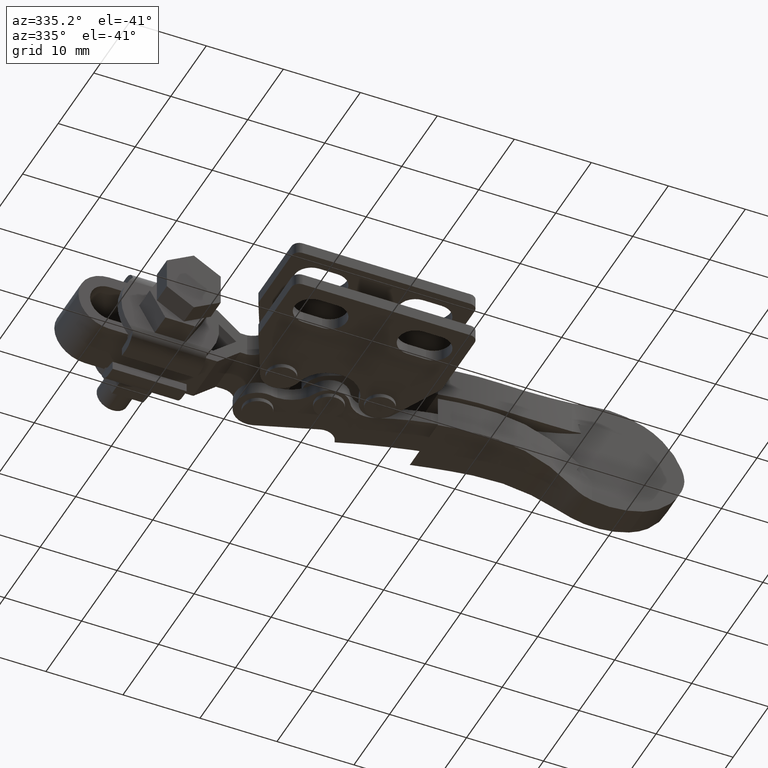
[diagram: clean part render]
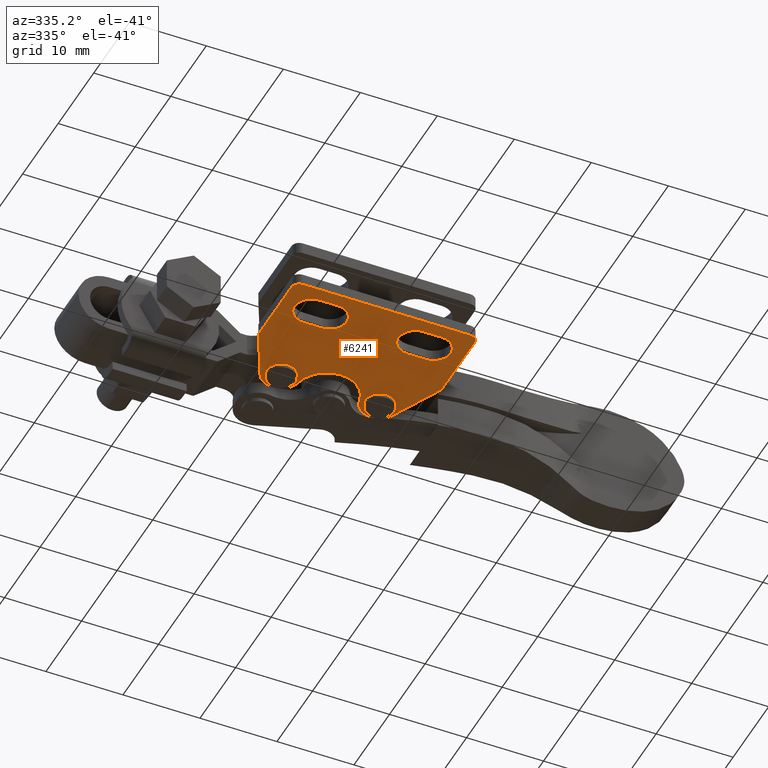
[diagram: same view with one face highlighted and labeled with its STEP entity id]
A machine part, auxiliary view. The second image highlights one B-rep face of the part: STEP entity #6241.
In plain terms, the highlighted planar face has unit normal (0, 0, 1).
Its self-contained STEP definition (entity closure, byte-faithful):
#27 = VERTEX_POINT ( 'NONE', #8476 ) ;
#49 = EDGE_CURVE ( 'NONE', #689, #8184, #8770, .T. ) ;
#179 = EDGE_CURVE ( 'NONE', #4251, #689, #1405, .T. ) ;
#365 = AXIS2_PLACEMENT_3D ( 'NONE', #9081, #4459, #9846 ) ;
#449 = ORIENTED_EDGE ( 'NONE', *, *, #49, .F. ) ;
#461 = FACE_OUTER_BOUND ( 'NONE', #1015, .T. ) ;
#549 = DIRECTION ( 'NONE',  ( 1.000000000000000000, 0.0000000000000000000, -0.0000000000000000000 ) ) ;
#578 = CIRCLE ( 'NONE', #7177, 1.875000000000000000 ) ;
#595 = DIRECTION ( 'NONE',  ( -0.0000000000000000000, -0.0000000000000000000, -1.000000000000000000 ) ) ;
#689 = VERTEX_POINT ( 'NONE', #4300 ) ;
#719 = DIRECTION ( 'NONE',  ( -0.0000000000000000000, -0.0000000000000000000, -1.000000000000000000 ) ) ;
#797 = LINE ( 'NONE', #916, #6941 ) ;
#823 = CARTESIAN_POINT ( 'NONE',  ( 2.999999999999891600, 1.749999999999999800, -3.199999999999851900 ) ) ;
#825 = DIRECTION ( 'NONE',  ( -1.000000000000000000, -0.0000000000000000000, 0.0000000000000000000 ) ) ;
#910 = EDGE_LOOP ( 'NONE', ( #6817, #4350 ) ) ;
#916 = CARTESIAN_POINT ( 'NONE',  ( 2.999999999999891600, 1.749999999999999800, -3.199999999999851900 ) ) ;
#932 = FACE_BOUND ( 'NONE', #6158, .T. ) ;
#935 = CARTESIAN_POINT ( 'NONE',  ( 20.53794887785156600, 16.86275654908127600, -3.199999999999851900 ) ) ;
#954 = AXIS2_PLACEMENT_3D ( 'NONE', #5866, #1254, #6610 ) ;
#967 = VECTOR ( 'NONE', #5178, 1000.000000000000000 ) ;
#1015 = EDGE_LOOP ( 'NONE', ( #6300, #1287, #9920, #3271, #4985, #449, #8466, #1125, #4337, #3084 ) ) ;
#1076 = AXIS2_PLACEMENT_3D ( 'NONE', #6642, #5157, #549 ) ;
#1125 = ORIENTED_EDGE ( 'NONE', *, *, #9242, .F. ) ;
#1129 = CARTESIAN_POINT ( 'NONE',  ( 3.262051122148043700, 16.86275654908130100, -3.199999999999851900 ) ) ;
#1254 = DIRECTION ( 'NONE',  ( 0.0000000000000000000, 0.0000000000000000000, 1.000000000000000000 ) ) ;
#1283 = VERTEX_POINT ( 'NONE', #1471 ) ;
#1287 = ORIENTED_EDGE ( 'NONE', *, *, #7120, .T. ) ;
#1329 = CARTESIAN_POINT ( 'NONE',  ( 1.000000000000000000, 0.0000000000000000000, -3.199999999999851900 ) ) ;
#1356 = ORIENTED_EDGE ( 'NONE', *, *, #8849, .T. ) ;
#1405 = CIRCLE ( 'NONE', #8087, 2.499999999999998700 ) ;
#1430 = VECTOR ( 'NONE', #8886, 1000.000000000000000 ) ;
#1441 = DIRECTION ( 'NONE',  ( -0.0000000000000000000, -1.000000000000000000, -0.0000000000000000000 ) ) ;
#1471 = CARTESIAN_POINT ( 'NONE',  ( 22.05000000000000100, 3.950000000000000200, -3.199999999999851900 ) ) ;
#1594 = VERTEX_POINT ( 'NONE', #1129 ) ;
#1599 = ORIENTED_EDGE ( 'NONE', *, *, #7982, .F. ) ;
#1697 = CARTESIAN_POINT ( 'NONE',  ( 17.44999999999999900, 3.950000000000000200, -3.199999999999851900 ) ) ;
#1763 = ORIENTED_EDGE ( 'NONE', *, *, #8268, .T. ) ;
#1820 = VERTEX_POINT ( 'NONE', #6343 ) ;
#1905 = VERTEX_POINT ( 'NONE', #7987 ) ;
#1964 = EDGE_CURVE ( 'NONE', #8184, #1594, #9660, .T. ) ;
#1967 = VECTOR ( 'NONE', #1441, 1000.000000000000000 ) ;
#1980 = ORIENTED_EDGE ( 'NONE', *, *, #7875, .T. ) ;
#2008 = ORIENTED_EDGE ( 'NONE', *, *, #4755, .T. ) ;
#2039 = AXIS2_PLACEMENT_3D ( 'NONE', #7202, #2614, #7980 ) ;
#2078 = ORIENTED_EDGE ( 'NONE', *, *, #7042, .T. ) ;
#2197 = EDGE_CURVE ( 'NONE', #4496, #2663, #6402, .T. ) ;
#2242 = CARTESIAN_POINT ( 'NONE',  ( 0.0000000000000000000, 3.000000000000113700, -3.199999999999851900 ) ) ;
#2376 = CIRCLE ( 'NONE', #3953, 2.200000000000000600 ) ;
#2405 = DIRECTION ( 'NONE',  ( 1.000000000000000000, 0.0000000000000000000, -0.0000000000000000000 ) ) ;
#2442 = VERTEX_POINT ( 'NONE', #4080 ) ;
#2469 = DIRECTION ( 'NONE',  ( 1.000000000000000000, 0.0000000000000000000, 0.0000000000000000000 ) ) ;
#2487 = FACE_BOUND ( 'NONE', #7347, .T. ) ;
#2505 = DIRECTION ( 'NONE',  ( 1.000000000000000000, 0.0000000000000000000, 0.0000000000000000000 ) ) ;
#2516 = CARTESIAN_POINT ( 'NONE',  ( 19.84999999999999800, 3.950000000000000200, -3.199999999999851900 ) ) ;
#2614 = DIRECTION ( 'NONE',  ( -0.0000000000000000000, -0.0000000000000000000, -1.000000000000000000 ) ) ;
#2663 = VERTEX_POINT ( 'NONE', #9794 ) ;
#3019 = CARTESIAN_POINT ( 'NONE',  ( 3.950000000000000200, 3.950000000000000200, -3.199999999999851900 ) ) ;
#3084 = ORIENTED_EDGE ( 'NONE', *, *, #8618, .T. ) ;
#3135 = LINE ( 'NONE', #8789, #5189 ) ;
#3190 = ORIENTED_EDGE ( 'NONE', *, *, #2197, .T. ) ;
#3233 = LINE ( 'NONE', #3504, #1430 ) ;
#3271 = ORIENTED_EDGE ( 'NONE', *, *, #9747, .F. ) ;
#3298 = EDGE_CURVE ( 'NONE', #3304, #7501, #3233, .T. ) ;
#3303 = DIRECTION ( 'NONE',  ( 1.000000000000000000, 0.0000000000000000000, 0.0000000000000000000 ) ) ;
#3304 = VERTEX_POINT ( 'NONE', #7334 ) ;
#3473 = LINE ( 'NONE', #7886, #6827 ) ;
#3488 = CARTESIAN_POINT ( 'NONE',  ( 5.500750043949922000, 15.75000000000009800, -3.199999999999851900 ) ) ;
#3504 = CARTESIAN_POINT ( 'NONE',  ( 2.999999999999891600, 6.150000000000001200, -3.199999999999851900 ) ) ;
#3539 = VERTEX_POINT ( 'NONE', #6134 ) ;
#3558 = CARTESIAN_POINT ( 'NONE',  ( 19.84999999999999800, 3.950000000000000200, -3.199999999999851900 ) ) ;
#3589 = EDGE_CURVE ( 'NONE', #2663, #27, #5998, .T. ) ;
#3616 = CARTESIAN_POINT ( 'NONE',  ( 11.89999999999980000, 16.89000000000005700, -3.199999999999851900 ) ) ;
#3801 = DIRECTION ( 'NONE',  ( 1.000000000000000000, 0.0000000000000000000, 0.0000000000000000000 ) ) ;
#3824 = CARTESIAN_POINT ( 'NONE',  ( 6.349999999999999600, 3.950000000000000200, -3.199999999999851900 ) ) ;
#3856 = LINE ( 'NONE', #5629, #7683 ) ;
#3895 = CARTESIAN_POINT ( 'NONE',  ( 18.29924995604967800, 15.75000000000009800, -3.199999999999848700 ) ) ;
#3948 = VECTOR ( 'NONE', #825, 1000.000000000000000 ) ;
#3953 = AXIS2_PLACEMENT_3D ( 'NONE', #3019, #8388, #3801 ) ;
#4080 = CARTESIAN_POINT ( 'NONE',  ( 0.0000000000000000000, 10.30000000000031000, -3.199999999999851900 ) ) ;
#4251 = VERTEX_POINT ( 'NONE', #935 ) ;
#4258 = DIRECTION ( 'NONE',  ( 1.000000000000000000, 0.0000000000000000000, 0.0000000000000000000 ) ) ;
#4300 = CARTESIAN_POINT ( 'NONE',  ( 15.83799997295369400, 16.18846153846159900, -3.199999999999851900 ) ) ;
#4317 = DIRECTION ( 'NONE',  ( 1.000000000000000000, 0.0000000000000000000, 0.0000000000000000000 ) ) ;
#4337 = ORIENTED_EDGE ( 'NONE', *, *, #9898, .F. ) ;
#4350 = ORIENTED_EDGE ( 'NONE', *, *, #5253, .F. ) ;
#4459 = DIRECTION ( 'NONE',  ( -0.0000000000000000000, -0.0000000000000000000, -1.000000000000000000 ) ) ;
#4466 = DIRECTION ( 'NONE',  ( -0.0000000000000000000, -0.0000000000000000000, -1.000000000000000000 ) ) ;
#4472 = AXIS2_PLACEMENT_3D ( 'NONE', #5335, #719, #6103 ) ;
#4496 = VERTEX_POINT ( 'NONE', #8052 ) ;
#4532 = FACE_BOUND ( 'NONE', #7048, .T. ) ;
#4575 = DIRECTION ( 'NONE',  ( 1.000000000000000000, 0.0000000000000000000, 0.0000000000000000000 ) ) ;
#4605 = VERTEX_POINT ( 'NONE', #5922 ) ;
#4667 = DIRECTION ( 'NONE',  ( 1.000000000000000000, 0.0000000000000000000, 0.0000000000000000000 ) ) ;
#4671 = EDGE_CURVE ( 'NONE', #9893, #9693, #7059, .T. ) ;
#4744 = CIRCLE ( 'NONE', #7641, 1.874999999999998200 ) ;
#4755 = EDGE_CURVE ( 'NONE', #27, #3539, #2376, .T. ) ;
#4823 = EDGE_CURVE ( 'NONE', #7635, #1905, #7781, .T. ) ;
#4944 = EDGE_CURVE ( 'NONE', #7339, #4605, #3473, .T. ) ;
#4985 = ORIENTED_EDGE ( 'NONE', *, *, #1964, .F. ) ;
#4993 = ORIENTED_EDGE ( 'NONE', *, *, #3298, .T. ) ;
#5081 = CIRCLE ( 'NONE', #9961, 2.200000000000000600 ) ;
#5086 = VERTEX_POINT ( 'NONE', #5751 ) ;
#5108 = DIRECTION ( 'NONE',  ( -0.0000000000000000000, -0.0000000000000000000, -1.000000000000000000 ) ) ;
#5157 = DIRECTION ( 'NONE',  ( 0.0000000000000000000, 0.0000000000000000000, 1.000000000000000000 ) ) ;
#5178 = DIRECTION ( 'NONE',  ( 0.0000000000000000000, 1.000000000000000000, 0.0000000000000000000 ) ) ;
#5189 = VECTOR ( 'NONE', #9583, 1000.000000000000100 ) ;
#5204 = CARTESIAN_POINT ( 'NONE',  ( 5.500750043949922800, 15.75000000000009800, -3.199999999999848700 ) ) ;
#5253 = EDGE_CURVE ( 'NONE', #9693, #9893, #578, .T. ) ;
#5329 = CARTESIAN_POINT ( 'NONE',  ( 23.79999999999959900, 1.000000000000000000, -3.199999999999851900 ) ) ;
#5335 = CARTESIAN_POINT ( 'NONE',  ( 22.79999999999959900, 1.000000000000000000, -3.199999999999851900 ) ) ;
#5352 = VERTEX_POINT ( 'NONE', #5329 ) ;
#5437 = CARTESIAN_POINT ( 'NONE',  ( 2.999999999999891600, 6.150000000000001200, -3.199999999999851900 ) ) ;
#5576 = DIRECTION ( 'NONE',  ( 1.000000000000000000, 0.0000000000000000000, 0.0000000000000000000 ) ) ;
#5629 = CARTESIAN_POINT ( 'NONE',  ( 20.53794887785156600, 16.86275654908127600, -3.199999999999851900 ) ) ;
#5695 = CIRCLE ( 'NONE', #9524, 2.200000000000000600 ) ;
#5698 = ORIENTED_EDGE ( 'NONE', *, *, #3589, .T. ) ;
#5751 = CARTESIAN_POINT ( 'NONE',  ( 19.84999999999999800, 1.749999999999999800, -3.199999999999851900 ) ) ;
#5866 = CARTESIAN_POINT ( 'NONE',  ( 6.349999999999999600, 3.950000000000000200, -3.199999999999851900 ) ) ;
#5911 = EDGE_CURVE ( 'NONE', #3539, #9443, #797, .T. ) ;
#5922 = CARTESIAN_POINT ( 'NONE',  ( 22.79999999999959900, 0.0000000000000000000, -3.199999999999851900 ) ) ;
#5929 = CARTESIAN_POINT ( 'NONE',  ( 6.349999999999999600, 1.749999999999999800, -3.199999999999851900 ) ) ;
#5971 = CIRCLE ( 'NONE', #8399, 2.200000000000000600 ) ;
#5980 = DIRECTION ( 'NONE',  ( 1.000000000000000000, 1.850371707708594400E-015, 0.0000000000000000000 ) ) ;
#5998 = LINE ( 'NONE', #5437, #3948 ) ;
#6053 = LINE ( 'NONE', #2242, #1967 ) ;
#6103 = DIRECTION ( 'NONE',  ( 1.000000000000000000, 0.0000000000000000000, 0.0000000000000000000 ) ) ;
#6134 = CARTESIAN_POINT ( 'NONE',  ( 3.950000000000000200, 1.749999999999999800, -3.199999999999851900 ) ) ;
#6156 = VECTOR ( 'NONE', #2405, 1000.000000000000000 ) ;
#6158 = EDGE_LOOP ( 'NONE', ( #5698, #2008, #7358, #1980, #3190 ) ) ;
#6241 = ADVANCED_FACE ( 'NONE', ( #932, #2487, #6576, #4532, #461 ), #8185, .F. ) ;
#6284 = DIRECTION ( 'NONE',  ( 1.000000000000000000, 0.0000000000000000000, -0.0000000000000000000 ) ) ;
#6300 = ORIENTED_EDGE ( 'NONE', *, *, #4944, .F. ) ;
#6343 = CARTESIAN_POINT ( 'NONE',  ( 0.0000000000000000000, 1.000000000000000000, -3.199999999999851900 ) ) ;
#6356 = VERTEX_POINT ( 'NONE', #9115 ) ;
#6391 = DIRECTION ( 'NONE',  ( -0.4451026196324694400, 0.8954795687207571800, -0.0000000000000000000 ) ) ;
#6402 = CIRCLE ( 'NONE', #8416, 2.200000000000000600 ) ;
#6555 = ORIENTED_EDGE ( 'NONE', *, *, #4823, .F. ) ;
#6576 = FACE_BOUND ( 'NONE', #910, .T. ) ;
#6610 = DIRECTION ( 'NONE',  ( 1.000000000000000000, 0.0000000000000000000, 0.0000000000000000000 ) ) ;
#6642 = CARTESIAN_POINT ( 'NONE',  ( 2.999999999999891600, 3.000000000000113700, -3.199999999999851900 ) ) ;
#6817 = ORIENTED_EDGE ( 'NONE', *, *, #4671, .F. ) ;
#6827 = VECTOR ( 'NONE', #5576, 1000.000000000000000 ) ;
#6850 = LINE ( 'NONE', #8216, #967 ) ;
#6859 = CARTESIAN_POINT ( 'NONE',  ( 17.44999999999999900, 6.150000000000001200, -3.199999999999851900 ) ) ;
#6941 = VECTOR ( 'NONE', #6284, 1000.000000000000000 ) ;
#6999 = CARTESIAN_POINT ( 'NONE',  ( 20.13329456691074500, 16.13975038854574300, -3.199999999999848700 ) ) ;
#7042 = EDGE_CURVE ( 'NONE', #7501, #8104, #5971, .T. ) ;
#7048 = EDGE_LOOP ( 'NONE', ( #6555, #1599 ) ) ;
#7059 = CIRCLE ( 'NONE', #365, 1.875000000000000000 ) ;
#7080 = DIRECTION ( 'NONE',  ( 0.0000000000000000000, 0.0000000000000000000, 1.000000000000000000 ) ) ;
#7081 = AXIS2_PLACEMENT_3D ( 'NONE', #3488, #8864, #4258 ) ;
#7120 = EDGE_CURVE ( 'NONE', #7339, #1820, #7282, .T. ) ;
#7177 = AXIS2_PLACEMENT_3D ( 'NONE', #5204, #595, #5980 ) ;
#7202 = CARTESIAN_POINT ( 'NONE',  ( 1.000000000000000000, 1.000000000000000000, -3.199999999999851900 ) ) ;
#7232 = CIRCLE ( 'NONE', #4472, 1.000000000000000900 ) ;
#7282 = CIRCLE ( 'NONE', #2039, 1.000000000000000000 ) ;
#7334 = CARTESIAN_POINT ( 'NONE',  ( 19.84999999999999800, 6.150000000000001200, -3.199999999999851900 ) ) ;
#7339 = VERTEX_POINT ( 'NONE', #1329 ) ;
#7347 = EDGE_LOOP ( 'NONE', ( #4993, #2078, #7379, #1356, #1763 ) ) ;
#7358 = ORIENTED_EDGE ( 'NONE', *, *, #5911, .T. ) ;
#7379 = ORIENTED_EDGE ( 'NONE', *, *, #8187, .T. ) ;
#7501 = VERTEX_POINT ( 'NONE', #6859 ) ;
#7635 = VERTEX_POINT ( 'NONE', #6999 ) ;
#7641 = AXIS2_PLACEMENT_3D ( 'NONE', #9087, #4466, #9849 ) ;
#7683 = VECTOR ( 'NONE', #6391, 1000.000000000000100 ) ;
#7781 = CIRCLE ( 'NONE', #8064, 1.874999999999998200 ) ;
#7875 = EDGE_CURVE ( 'NONE', #9443, #4496, #8704, .T. ) ;
#7886 = CARTESIAN_POINT ( 'NONE',  ( 2.999999999999891600, 0.0000000000000000000, -3.199999999999851900 ) ) ;
#7894 = DIRECTION ( 'NONE',  ( 0.0000000000000000000, 0.0000000000000000000, 1.000000000000000000 ) ) ;
#7980 = DIRECTION ( 'NONE',  ( 1.000000000000000000, 0.0000000000000000000, 0.0000000000000000000 ) ) ;
#7982 = EDGE_CURVE ( 'NONE', #1905, #7635, #4744, .T. ) ;
#7987 = CARTESIAN_POINT ( 'NONE',  ( 16.46520534518861100, 15.36024961145445300, -3.199999999999848700 ) ) ;
#8052 = CARTESIAN_POINT ( 'NONE',  ( 8.550000000000000700, 3.950000000000000200, -3.199999999999851900 ) ) ;
#8055 = EDGE_CURVE ( 'NONE', #2442, #1820, #6053, .T. ) ;
#8064 = AXIS2_PLACEMENT_3D ( 'NONE', #3895, #9257, #4667 ) ;
#8087 = AXIS2_PLACEMENT_3D ( 'NONE', #9716, #9695, #9420 ) ;
#8104 = VERTEX_POINT ( 'NONE', #8455 ) ;
#8173 = CARTESIAN_POINT ( 'NONE',  ( 7.373472918111313700, 15.65762015050517800, -3.199999999999848700 ) ) ;
#8184 = VERTEX_POINT ( 'NONE', #9305 ) ;
#8185 = PLANE ( 'NONE',  #1076 ) ;
#8187 = EDGE_CURVE ( 'NONE', #8104, #5086, #8203, .T. ) ;
#8203 = LINE ( 'NONE', #823, #6156 ) ;
#8216 = CARTESIAN_POINT ( 'NONE',  ( 23.79999999999959900, 3.000000000000113700, -3.199999999999851900 ) ) ;
#8268 = EDGE_CURVE ( 'NONE', #1283, #3304, #5695, .T. ) ;
#8388 = DIRECTION ( 'NONE',  ( 0.0000000000000000000, 0.0000000000000000000, 1.000000000000000000 ) ) ;
#8399 = AXIS2_PLACEMENT_3D ( 'NONE', #1697, #7080, #2469 ) ;
#8416 = AXIS2_PLACEMENT_3D ( 'NONE', #3824, #9195, #4575 ) ;
#8455 = CARTESIAN_POINT ( 'NONE',  ( 17.44999999999999900, 1.749999999999999800, -3.199999999999851900 ) ) ;
#8466 = ORIENTED_EDGE ( 'NONE', *, *, #179, .F. ) ;
#8476 = CARTESIAN_POINT ( 'NONE',  ( 3.950000000000000200, 6.150000000000001200, -3.199999999999851900 ) ) ;
#8618 = EDGE_CURVE ( 'NONE', #5352, #4605, #7232, .T. ) ;
#8693 = CARTESIAN_POINT ( 'NONE',  ( 3.628027169788533300, 15.84237984949501600, -3.199999999999848700 ) ) ;
#8704 = CIRCLE ( 'NONE', #954, 2.200000000000000600 ) ;
#8770 = CIRCLE ( 'NONE', #9316, 4.000000000000329500 ) ;
#8789 = CARTESIAN_POINT ( 'NONE',  ( 3.262051122148040200, 16.86275654908130100, -3.199999999999851900 ) ) ;
#8849 = EDGE_CURVE ( 'NONE', #5086, #1283, #5081, .T. ) ;
#8864 = DIRECTION ( 'NONE',  ( 0.0000000000000000000, 0.0000000000000000000, 1.000000000000000000 ) ) ;
#8886 = DIRECTION ( 'NONE',  ( -1.000000000000000000, -0.0000000000000000000, 0.0000000000000000000 ) ) ;
#8928 = DIRECTION ( 'NONE',  ( 0.0000000000000000000, 0.0000000000000000000, 1.000000000000000000 ) ) ;
#9081 = CARTESIAN_POINT ( 'NONE',  ( 5.500750043949922800, 15.75000000000009800, -3.199999999999848700 ) ) ;
#9087 = CARTESIAN_POINT ( 'NONE',  ( 18.29924995604967800, 15.75000000000009800, -3.199999999999848700 ) ) ;
#9115 = CARTESIAN_POINT ( 'NONE',  ( 23.79999999999959900, 10.30000000000008600, -3.199999999999851900 ) ) ;
#9195 = DIRECTION ( 'NONE',  ( 0.0000000000000000000, 0.0000000000000000000, 1.000000000000000000 ) ) ;
#9242 = EDGE_CURVE ( 'NONE', #6356, #4251, #3856, .T. ) ;
#9257 = DIRECTION ( 'NONE',  ( -0.0000000000000000000, -0.0000000000000000000, -1.000000000000000000 ) ) ;
#9305 = CARTESIAN_POINT ( 'NONE',  ( 7.962000027045903900, 16.18846153846159900, -3.199999999999851900 ) ) ;
#9316 = AXIS2_PLACEMENT_3D ( 'NONE', #3616, #5108, #2505 ) ;
#9420 = DIRECTION ( 'NONE',  ( 1.000000000000000000, 0.0000000000000000000, 0.0000000000000000000 ) ) ;
#9443 = VERTEX_POINT ( 'NONE', #5929 ) ;
#9524 = AXIS2_PLACEMENT_3D ( 'NONE', #2516, #7894, #3303 ) ;
#9583 = DIRECTION ( 'NONE',  ( -0.4451026196324809900, -0.8954795687207514100, 0.0000000000000000000 ) ) ;
#9660 = CIRCLE ( 'NONE', #7081, 2.500000000000002200 ) ;
#9693 = VERTEX_POINT ( 'NONE', #8693 ) ;
#9695 = DIRECTION ( 'NONE',  ( 0.0000000000000000000, 0.0000000000000000000, 1.000000000000000000 ) ) ;
#9716 = CARTESIAN_POINT ( 'NONE',  ( 18.29924995604967800, 15.75000000000009800, -3.199999999999851900 ) ) ;
#9747 = EDGE_CURVE ( 'NONE', #1594, #2442, #3135, .T. ) ;
#9794 = CARTESIAN_POINT ( 'NONE',  ( 6.349999999999999600, 6.150000000000001200, -3.199999999999851900 ) ) ;
#9846 = DIRECTION ( 'NONE',  ( 1.000000000000000000, 0.0000000000000000000, 0.0000000000000000000 ) ) ;
#9849 = DIRECTION ( 'NONE',  ( 1.000000000000000000, 0.0000000000000000000, 0.0000000000000000000 ) ) ;
#9893 = VERTEX_POINT ( 'NONE', #8173 ) ;
#9898 = EDGE_CURVE ( 'NONE', #5352, #6356, #6850, .T. ) ;
#9920 = ORIENTED_EDGE ( 'NONE', *, *, #8055, .F. ) ;
#9961 = AXIS2_PLACEMENT_3D ( 'NONE', #3558, #8928, #4317 ) ;